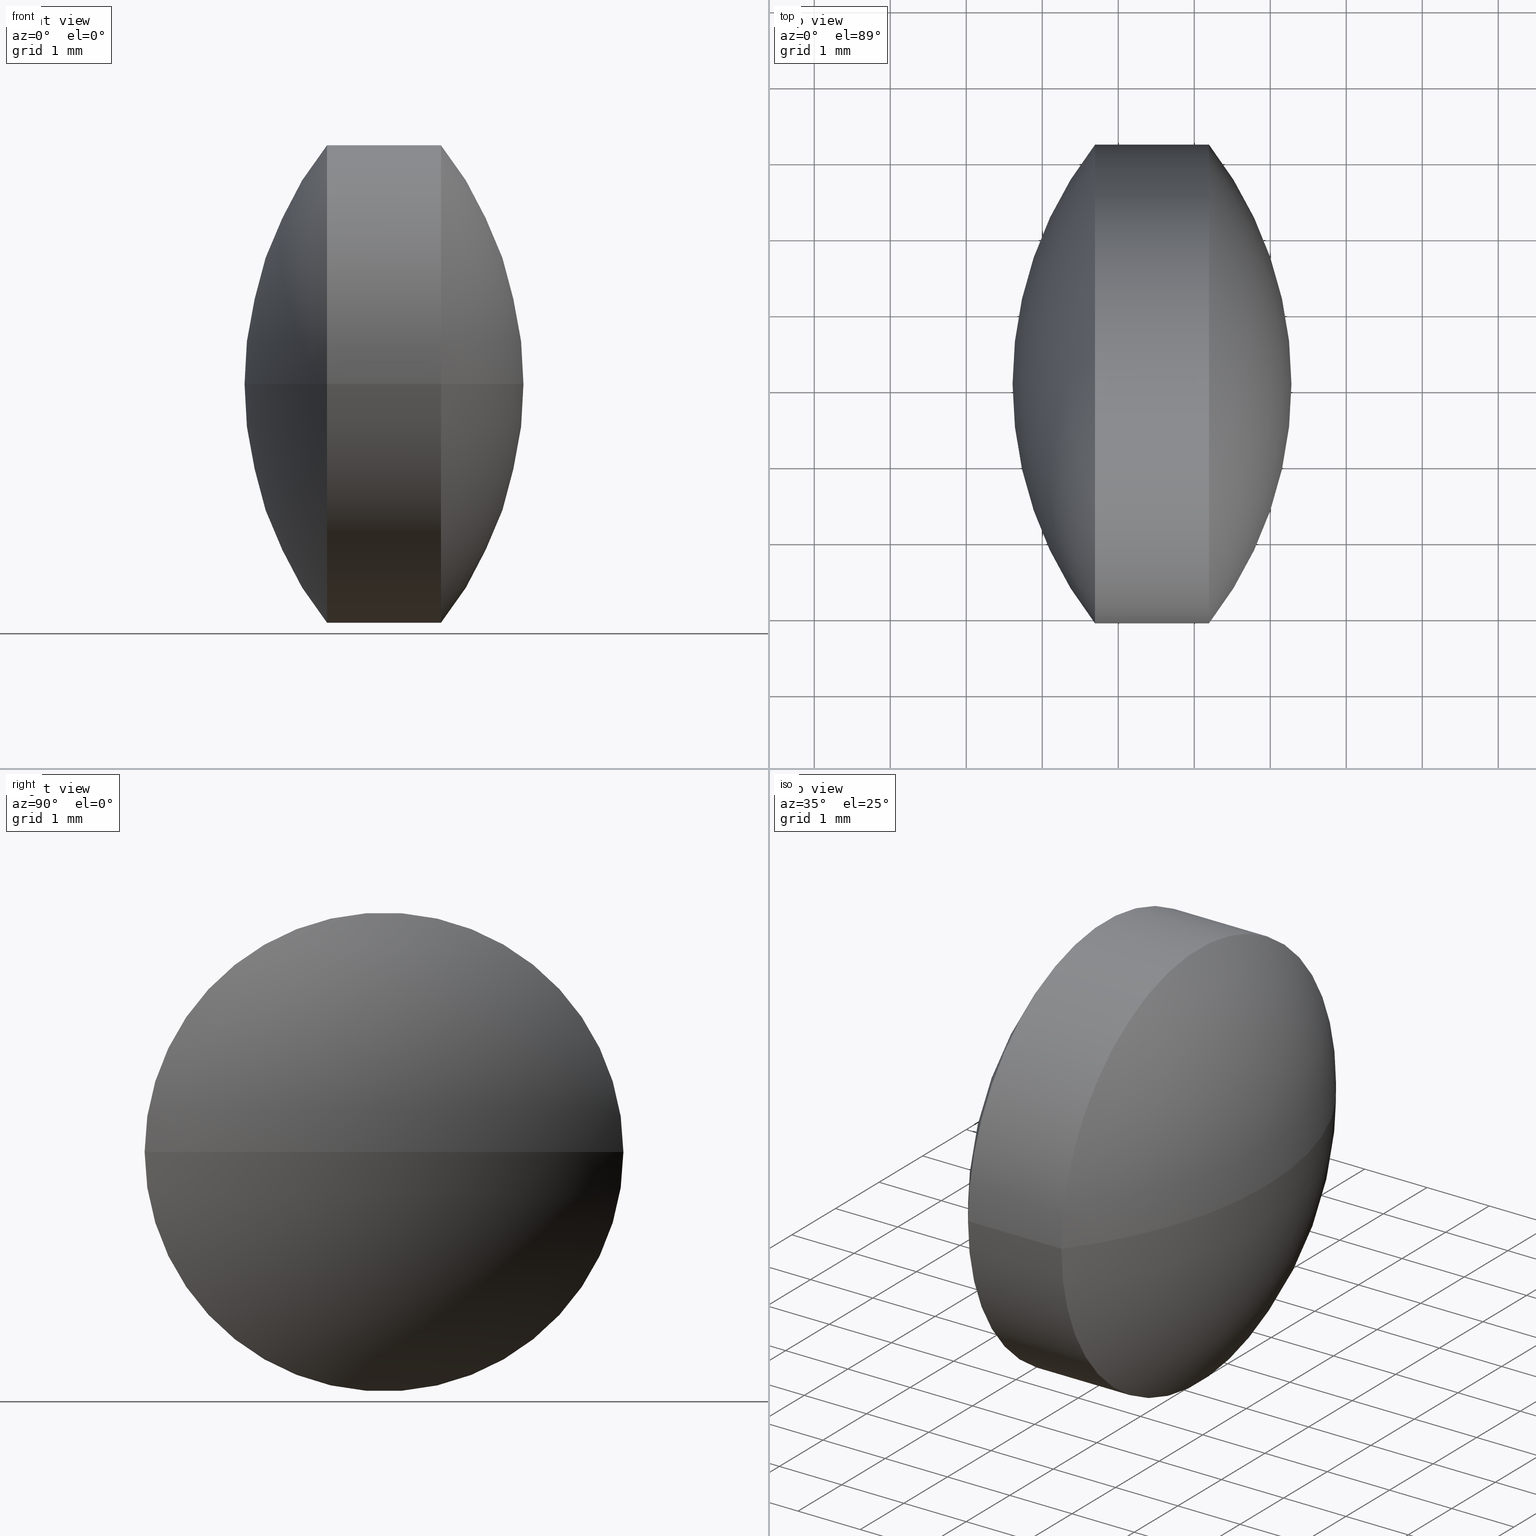
[diagram: canonical four-view strip — front | top / right | iso, engineering-drawing reading convention]
A machine part, canonical four-view strip (front | top / right | iso — engineering-drawing reading convention). The complete STEP part file that produces these views, byte-faithful:
ISO-10303-21;
HEADER;
FILE_DESCRIPTION (( 'STEP AP203' ),
    '1' );
FILE_NAME ('110089.STEP',
    '2019-07-01T08:39:48',
    ( '' ),
    ( '' ),
    'SwSTEP 2.0',
    'SolidWorks 2016',
    '' );
FILE_SCHEMA (( 'CONFIG_CONTROL_DESIGN' ));
ENDSEC;

DATA;
#1 = MECHANICAL_CONTEXT ( 'NONE', #4, 'mechanical' ) ;
#2 = CARTESIAN_POINT ( 'NONE',  ( 18.16424793177497700, 12.05832724590804600, 0.0000000000000000000 ) ) ;
#3 = PERSON_AND_ORGANIZATION ( #164, #63 ) ;
#4 = APPLICATION_CONTEXT ( 'configuration controlled 3d designs of mechanical parts and assemblies' ) ;
#5 = FACE_OUTER_BOUND ( 'NONE', #30, .T. ) ;
#6 = FACE_OUTER_BOUND ( 'NONE', #210, .T. ) ;
#7 = CC_DESIGN_PERSON_AND_ORGANIZATION_ASSIGNMENT ( #207, #44, ( #20 ) ) ;
#8 = APPROVAL_ROLE ( '' ) ;
#9 = APPROVAL_PERSON_ORGANIZATION ( #65, #212, #8 ) ;
#10 = LOCAL_TIME ( 16, 39, 48.00000000000000000, #66 ) ;
#11 = MANIFOLD_SOLID_BREP ( '��ת1', #286 ) ;
#12 = CARTESIAN_POINT ( 'NONE',  ( 20.69435814883362200, 15.20832724590803800, 0.0000000000000000000 ) ) ;
#13 = ADVANCED_BREP_SHAPE_REPRESENTATION ( '110089', ( #11, #273 ), #99 ) ;
#14 = CC_DESIGN_PERSON_AND_ORGANIZATION_ASSIGNMENT ( #293, #67, ( #64 ) ) ;
#15 = SPHERICAL_SURFACE ( 'NONE', #276, 5.115099217058601200 ) ;
#16 = DIRECTION ( 'NONE',  ( -1.000000000000000000, 1.322154552567026900E-015, -0.0000000000000000000 ) ) ;
#17 = LOCAL_TIME ( 16, 39, 48.00000000000000000, #264 ) ;
#18 = FACE_OUTER_BOUND ( 'NONE', #260, .T. ) ;
#19 = ORIENTED_EDGE ( 'NONE', *, *, #263, .F. ) ;
#20 = PRODUCT_DEFINITION_FORMATION_WITH_SPECIFIED_SOURCE ( '�κ�', '', #41, .NOT_KNOWN. ) ;
#21 = DESIGN_CONTEXT ( 'detailed design', #229, 'design' ) ;
#22 = AXIS2_PLACEMENT_3D ( 'NONE', #299, #16, #180 ) ;
#23 = ORIENTED_EDGE ( 'NONE', *, *, #204, .F. ) ;
#24 = APPROVAL_STATUS ( 'not_yet_approved' ) ;
#25 = APPROVAL_ROLE ( '' ) ;
#26 = CARTESIAN_POINT ( 'NONE',  ( 20.69435814883361500, 8.908327245908047600, -3.857637417314156800E-016 ) ) ;
#27 = APPLICATION_PROTOCOL_DEFINITION ( 'international standard', 'config_control_design', 1994, #172 ) ;
#28 = DIRECTION ( 'NONE',  ( 0.0000000000000000000, -1.000000000000000000, -1.224646799147353000E-016 ) ) ;
#29 = ADVANCED_FACE ( 'NONE', ( #6 ), #58, .T. ) ;
#30 = EDGE_LOOP ( 'NONE', ( #266, #202, #33 ) ) ;
#31 = DIRECTION ( 'NONE',  ( -1.101411730778926900E-015, -1.000000000000000000, 0.0000000000000000000 ) ) ;
#32 = APPROVAL_DATE_TIME ( #177, #268 ) ;
#33 = ORIENTED_EDGE ( 'NONE', *, *, #204, .T. ) ;
#34 = CARTESIAN_POINT ( 'NONE',  ( 19.60936314883361900, 12.05832724590804400, 0.0000000000000000000 ) ) ;
#35 = CC_DESIGN_DATE_AND_TIME_ASSIGNMENT ( #72, #252, ( #274 ) ) ;
#36 = COORDINATED_UNIVERSAL_TIME_OFFSET ( 8, 0, .AHEAD. ) ;
#37 = CARTESIAN_POINT ( 'NONE',  ( 18.16424793177497700, 12.05832724590804600, 0.0000000000000000000 ) ) ;
#38 = DIRECTION ( 'NONE',  ( 0.0000000000000000000, 1.000000000000000000, 1.224646799147353000E-016 ) ) ;
#39 = ORIENTED_EDGE ( 'NONE', *, *, #297, .F. ) ;
#40 = UNCERTAINTY_MEASURE_WITH_UNIT (LENGTH_MEASURE( 1.000000000000000100E-005 ), #43, 'distance_accuracy_value', 'NONE');
#41 = PRODUCT ( '110089', '110089', '', ( #123 ) ) ;
#42 = LOCAL_TIME ( 16, 39, 48.00000000000000000, #239 ) ;
#43 =( LENGTH_UNIT ( ) NAMED_UNIT ( * ) SI_UNIT ( .MILLI., .METRE. ) );
#44 = PERSON_AND_ORGANIZATION_ROLE ( 'design_supplier' ) ;
#45 = PERSON_AND_ORGANIZATION_ROLE ( 'design_supplier' ) ;
#46 = PERSON_AND_ORGANIZATION_ROLE ( 'creator' ) ;
#47 = DATE_TIME_ROLE ( 'creation_date' ) ;
#48 = APPROVAL ( #119, 'δָ��' ) ;
#49 = APPROVAL_DATE_TIME ( #113, #160 ) ;
#50 = FACE_OUTER_BOUND ( 'NONE', #142, .T. ) ;
#51 = AXIS2_PLACEMENT_3D ( 'NONE', #2, #192, #28 ) ;
#52 = PERSON_AND_ORGANIZATION ( #164, #63 ) ;
#53 = CC_DESIGN_PERSON_AND_ORGANIZATION_ASSIGNMENT ( #3, #187, ( #115 ) ) ;
#54 = CARTESIAN_POINT ( 'NONE',  ( 22.19435214883362000, 12.05832724590804100, 0.0000000000000000000 ) ) ;
#55 = AXIS2_PLACEMENT_3D ( 'NONE', #54, #238, #156 ) ;
#56 = DIRECTION ( 'NONE',  ( 0.0000000000000000000, 0.0000000000000000000, 1.000000000000000000 ) ) ;
#57 = COORDINATED_UNIVERSAL_TIME_OFFSET ( 8, 0, .AHEAD. ) ;
#58 = SPHERICAL_SURFACE ( 'NONE', #271, 5.115099217058636700 ) ;
#59 = CARTESIAN_POINT ( 'NONE',  ( 18.16424793177497700, 12.05832724590804600, 0.0000000000000000000 ) ) ;
#60 = DIRECTION ( 'NONE',  ( 1.000000000000000000, 0.0000000000000000000, 0.0000000000000000000 ) ) ;
#61 = LOCAL_TIME ( 16, 39, 48.00000000000000000, #57 ) ;
#62 = DIRECTION ( 'NONE',  ( -1.000000000000000000, 1.322154552567026900E-015, -0.0000000000000000000 ) ) ;
#63 = ORGANIZATION ( 'δָ��', 'δָ��', '' ) ;
#64 = PRODUCT_DEFINITION_FORMATION_WITH_SPECIFIED_SOURCE ( '�κ�', '', #144, .NOT_KNOWN. ) ;
#65 = PERSON_AND_ORGANIZATION ( #164, #63 ) ;
#66 = COORDINATED_UNIVERSAL_TIME_OFFSET ( 8, 0, .AHEAD. ) ;
#67 = PERSON_AND_ORGANIZATION_ROLE ( 'creator' ) ;
#68 = CC_DESIGN_APPROVAL ( #183, ( #274 ) ) ;
#69 = ADVANCED_FACE ( 'NONE', ( #50 ), #106, .T. ) ;
#70 = DIRECTION ( 'NONE',  ( -1.000000000000000000, 0.0000000000000000000, 0.0000000000000000000 ) ) ;
#71 = AXIS2_PLACEMENT_3D ( 'NONE', #59, #56, #81 ) ;
#72 = DATE_AND_TIME ( #139, #17 ) ;
#73 = APPROVAL_ROLE ( '' ) ;
#74 = VERTEX_POINT ( 'NONE', #34 ) ;
#75 = PERSON_AND_ORGANIZATION_ROLE ( 'creator' ) ;
#76 = PERSON_AND_ORGANIZATION ( #164, #63 ) ;
#77 = CC_DESIGN_PERSON_AND_ORGANIZATION_ASSIGNMENT ( #141, #75, ( #20 ) ) ;
#78 = DATE_AND_TIME ( #188, #173 ) ;
#79 = LOCAL_TIME ( 16, 39, 48.00000000000000000, #236 ) ;
#80 = DIRECTION ( 'NONE',  ( -1.356551184924490700E-015, -1.000000000000000000, 0.0000000000000000000 ) ) ;
#81 = DIRECTION ( 'NONE',  ( -1.356551184924490700E-015, -1.000000000000000000, 0.0000000000000000000 ) ) ;
#82 = CARTESIAN_POINT ( 'NONE',  ( 18.16424793177497300, 8.908327245908051100, 0.0000000000000000000 ) ) ;
#83 = CC_DESIGN_SECURITY_CLASSIFICATION ( #305, ( #64 ) ) ;
#84 = PRODUCT_DEFINITION_SHAPE ( 'NONE', 'NONE',  #115 ) ;
#85 = CC_DESIGN_APPROVAL ( #268, ( #20 ) ) ;
#86 = CIRCLE ( 'NONE', #186, 5.115099217058636700 ) ;
#87 = VERTEX_POINT ( 'NONE', #267 ) ;
#88 = EDGE_CURVE ( 'NONE', #282, #194, #295, .T. ) ;
#89 = CC_DESIGN_APPROVAL ( #160, ( #253 ) ) ;
#90 =( NAMED_UNIT ( * ) PLANE_ANGLE_UNIT ( ) SI_UNIT ( $, .RADIAN. ) );
#91 = APPROVAL_DATE_TIME ( #222, #212 ) ;
#92 = APPLICATION_PROTOCOL_DEFINITION ( 'international standard', 'config_control_design', 1994, #229 ) ;
#93 = COORDINATED_UNIVERSAL_TIME_OFFSET ( 8, 0, .AHEAD. ) ;
#94 = VERTEX_POINT ( 'NONE', #159 ) ;
#95 = CARTESIAN_POINT ( 'NONE',  ( 0.0000000000000000000, 0.0000000000000000000, 0.0000000000000000000 ) ) ;
#96 = CARTESIAN_POINT ( 'NONE',  ( 22.19435214883361600, 8.908327245908040500, 0.0000000000000000000 ) ) ;
#97 = APPROVAL_PERSON_ORGANIZATION ( #162, #277, #205 ) ;
#98 = ORIENTED_EDGE ( 'NONE', *, *, #158, .F. ) ;
#99 =( GEOMETRIC_REPRESENTATION_CONTEXT ( 3 ) GLOBAL_UNCERTAINTY_ASSIGNED_CONTEXT ( ( #40 ) ) GLOBAL_UNIT_ASSIGNED_CONTEXT ( ( #43, #90, #170 ) ) REPRESENTATION_CONTEXT ( 'NONE', 'WORKASPACE' ) );
#100 = PERSON_AND_ORGANIZATION ( #164, #63 ) ;
#101 = ORIENTED_EDGE ( 'NONE', *, *, #140, .F. ) ;
#102 = DIRECTION ( 'NONE',  ( 0.0000000000000000000, 0.0000000000000000000, -1.000000000000000000 ) ) ;
#103 = DIRECTION ( 'NONE',  ( 0.0000000000000000000, 0.0000000000000000000, 1.000000000000000000 ) ) ;
#104 = DATE_AND_TIME ( #191, #176 ) ;
#105 = CALENDAR_DATE ( 2019, 1, 7 ) ;
#106 = CYLINDRICAL_SURFACE ( 'NONE', #287, 3.149999999999995000 ) ;
#107 = DIRECTION ( 'NONE',  ( -1.000000000000000000, 1.322154552567026900E-015, -0.0000000000000000000 ) ) ;
#108 = PRODUCT_RELATED_PRODUCT_CATEGORY ( 'detail', '', ( #41 ) ) ;
#109 = CALENDAR_DATE ( 2019, 1, 7 ) ;
#110 = ORIENTED_EDGE ( 'NONE', *, *, #88, .F. ) ;
#111 = CALENDAR_DATE ( 2019, 1, 7 ) ;
#112 = APPROVAL_DATE_TIME ( #104, #48 ) ;
#113 = DATE_AND_TIME ( #230, #61 ) ;
#114 = ORIENTED_EDGE ( 'NONE', *, *, #247, .T. ) ;
#115 = PRODUCT_DEFINITION ( 'δ֪', '', #64, #21 ) ;
#116 = PERSON_AND_ORGANIZATION ( #164, #63 ) ;
#117 = APPLICATION_PROTOCOL_DEFINITION ( 'international standard', 'config_control_design', 1994, #4 ) ;
#118 = CC_DESIGN_PERSON_AND_ORGANIZATION_ASSIGNMENT ( #163, #121, ( #144 ) ) ;
#119 = APPROVAL_STATUS ( 'not_yet_approved' ) ;
#120 = EDGE_CURVE ( 'NONE', #87, #194, #214, .T. ) ;
#121 = PERSON_AND_ORGANIZATION_ROLE ( 'design_owner' ) ;
#122 = APPROVAL_PERSON_ORGANIZATION ( #303, #160, #25 ) ;
#123 = MECHANICAL_CONTEXT ( 'NONE', #172, 'mechanical' ) ;
#124 = PRODUCT_RELATED_PRODUCT_CATEGORY ( 'detail', '', ( #144 ) ) ;
#125 = ADVANCED_FACE ( 'NONE', ( #296 ), #240, .T. ) ;
#126 = CYLINDRICAL_SURFACE ( 'NONE', #257, 3.149999999999995000 ) ;
#127 = DATE_TIME_ROLE ( 'classification_date' ) ;
#128 = DIRECTION ( 'NONE',  ( -1.000000000000000000, 1.322154552567026900E-015, -0.0000000000000000000 ) ) ;
#129 = CARTESIAN_POINT ( 'NONE',  ( 24.72446236589222200, 12.05832724590803700, 0.0000000000000000000 ) ) ;
#130 = VECTOR ( 'NONE', #243, 1000.000000000000000 ) ;
#131 = ORIENTED_EDGE ( 'NONE', *, *, #242, .F. ) ;
#132 = CARTESIAN_POINT ( 'NONE',  ( 24.72446236589222200, 12.05832724590803700, 0.0000000000000000000 ) ) ;
#133 = AXIS2_PLACEMENT_3D ( 'NONE', #95, #258, #225 ) ;
#134 = DIRECTION ( 'NONE',  ( -1.101411730778927500E-015, -1.000000000000000000, 0.0000000000000000000 ) ) ;
#135 = DATE_AND_TIME ( #278, #302 ) ;
#136 = APPROVAL_PERSON_ORGANIZATION ( #52, #268, #73 ) ;
#137 = DIRECTION ( 'NONE',  ( 1.356551184924500000E-015, 1.000000000000000000, 0.0000000000000000000 ) ) ;
#138 = CC_DESIGN_PERSON_AND_ORGANIZATION_ASSIGNMENT ( #272, #175, ( #305 ) ) ;
#139 = CALENDAR_DATE ( 2019, 1, 7 ) ;
#140 = EDGE_CURVE ( 'NONE', #289, #87, #209, .T. ) ;
#141 = PERSON_AND_ORGANIZATION ( #164, #63 ) ;
#142 = EDGE_LOOP ( 'NONE', ( #304, #151, #110, #98 ) ) ;
#143 = APPROVAL_STATUS ( 'not_yet_approved' ) ;
#144 = PRODUCT ( '110089', '110089', '', ( #1 ) ) ;
#145 = DIRECTION ( 'NONE',  ( -1.101411730778927500E-015, -1.000000000000000000, 0.0000000000000000000 ) ) ;
#146 = ORIENTED_EDGE ( 'NONE', *, *, #158, .T. ) ;
#147 = CARTESIAN_POINT ( 'NONE',  ( 0.0000000000000000000, 0.0000000000000000000, 0.0000000000000000000 ) ) ;
#148 = ADVANCED_FACE ( 'NONE', ( #18 ), #154, .T. ) ;
#149 = CARTESIAN_POINT ( 'NONE',  ( 20.69435814883361900, 12.05832724590804300, 0.0000000000000000000 ) ) ;
#150 = CC_DESIGN_PERSON_AND_ORGANIZATION_ASSIGNMENT ( #116, #45, ( #64 ) ) ;
#151 = ORIENTED_EDGE ( 'NONE', *, *, #120, .T. ) ;
#152 = CC_DESIGN_APPROVAL ( #212, ( #305 ) ) ;
#153 = PERSON_AND_ORGANIZATION ( #164, #63 ) ;
#154 = SPHERICAL_SURFACE ( 'NONE', #174, 5.115099217058601200 ) ;
#155 = ORIENTED_EDGE ( 'NONE', *, *, #251, .F. ) ;
#156 = DIRECTION ( 'NONE',  ( -1.101411730778926900E-015, -1.000000000000000000, 0.0000000000000000000 ) ) ;
#157 = CARTESIAN_POINT ( 'NONE',  ( 18.16424793177497700, 12.05832724590804600, 0.0000000000000000000 ) ) ;
#158 = EDGE_CURVE ( 'NONE', #289, #282, #234, .T. ) ;
#159 = CARTESIAN_POINT ( 'NONE',  ( 23.27934714883361500, 12.05832724590803900, 0.0000000000000000000 ) ) ;
#160 = APPROVAL ( #24, 'δָ��' ) ;
#161 = DIRECTION ( 'NONE',  ( 1.619172340779310500E-031, 1.224646799147353200E-016, -1.000000000000000000 ) ) ;
#162 = PERSON_AND_ORGANIZATION ( #164, #63 ) ;
#163 = PERSON_AND_ORGANIZATION ( #164, #63 ) ;
#164 = PERSON ( 'δָ��', 'δָ��', 'δָ��', ('δָ��'), ('δָ��'), ('δָ��') ) ;
#165 = DATE_AND_TIME ( #105, #193 ) ;
#166 = CC_DESIGN_DATE_AND_TIME_ASSIGNMENT ( #135, #127, ( #305 ) ) ;
#167 = APPROVAL_ROLE ( '' ) ;
#168 = DESIGN_CONTEXT ( 'detailed design', #283, 'design' ) ;
#169 = APPROVAL_STATUS ( 'not_yet_approved' ) ;
#170 =( NAMED_UNIT ( * ) SI_UNIT ( $, .STERADIAN. ) SOLID_ANGLE_UNIT ( ) );
#171 = AXIS2_PLACEMENT_3D ( 'NONE', #244, #161, #38 ) ;
#172 = APPLICATION_CONTEXT ( 'configuration controlled 3d designs of mechanical parts and assemblies' ) ;
#173 = LOCAL_TIME ( 16, 39, 48.00000000000000000, #93 ) ;
#174 = AXIS2_PLACEMENT_3D ( 'NONE', #129, #292, #270 ) ;
#175 = PERSON_AND_ORGANIZATION_ROLE ( 'classification_officer' ) ;
#176 = LOCAL_TIME ( 16, 39, 48.00000000000000000, #224 ) ;
#177 = DATE_AND_TIME ( #301, #10 ) ;
#178 = ORIENTED_EDGE ( 'NONE', *, *, #251, .T. ) ;
#179 = CARTESIAN_POINT ( 'NONE',  ( 20.69435814883361900, 12.05832724590804300, 0.0000000000000000000 ) ) ;
#180 = DIRECTION ( 'NONE',  ( -1.101411730778926900E-015, -1.000000000000000000, 0.0000000000000000000 ) ) ;
#181 = CARTESIAN_POINT ( 'NONE',  ( 18.16424793177497700, 12.05832724590804600, 0.0000000000000000000 ) ) ;
#182 = SHAPE_DEFINITION_REPRESENTATION ( #84, #13 ) ;
#183 = APPROVAL ( #169, 'δָ��' ) ;
#184 = COORDINATED_UNIVERSAL_TIME_OFFSET ( 8, 0, .AHEAD. ) ;
#185 = CIRCLE ( 'NONE', #200, 3.149999999999993200 ) ;
#186 = AXIS2_PLACEMENT_3D ( 'NONE', #37, #228, #70 ) ;
#187 = PERSON_AND_ORGANIZATION_ROLE ( 'creator' ) ;
#188 = CALENDAR_DATE ( 2019, 1, 7 ) ;
#189 = DATE_TIME_ROLE ( 'creation_date' ) ;
#190 = APPLICATION_PROTOCOL_DEFINITION ( 'international standard', 'config_control_design', 1994, #283 ) ;
#191 = CALENDAR_DATE ( 2019, 1, 7 ) ;
#192 = DIRECTION ( 'NONE',  ( -1.619172340779310500E-031, -1.224646799147353200E-016, 1.000000000000000000 ) ) ;
#193 = LOCAL_TIME ( 16, 39, 48.00000000000000000, #201 ) ;
#194 = VERTEX_POINT ( 'NONE', #12 ) ;
#195 = DATE_AND_TIME ( #248, #42 ) ;
#196 = CC_DESIGN_DATE_AND_TIME_ASSIGNMENT ( #195, #189, ( #115 ) ) ;
#197 = CARTESIAN_POINT ( 'NONE',  ( 18.16424793177498000, 15.20832724590804100, 3.857637417314155300E-016 ) ) ;
#198 = CIRCLE ( 'NONE', #171, 5.115099217058602000 ) ;
#199 = ORIENTED_EDGE ( 'NONE', *, *, #242, .T. ) ;
#200 = AXIS2_PLACEMENT_3D ( 'NONE', #149, #208, #145 ) ;
#201 = COORDINATED_UNIVERSAL_TIME_OFFSET ( 8, 0, .AHEAD. ) ;
#202 = ORIENTED_EDGE ( 'NONE', *, *, #88, .T. ) ;
#203 = PERSON_AND_ORGANIZATION ( #164, #63 ) ;
#204 = EDGE_CURVE ( 'NONE', #194, #74, #219, .T. ) ;
#205 = APPROVAL_ROLE ( '' ) ;
#206 = DATE_AND_TIME ( #111, #275 ) ;
#207 = PERSON_AND_ORGANIZATION ( #164, #63 ) ;
#208 = DIRECTION ( 'NONE',  ( -1.000000000000000000, 1.322154552567026900E-015, -0.0000000000000000000 ) ) ;
#209 = CIRCLE ( 'NONE', #55, 3.149999999999995000 ) ;
#210 = EDGE_LOOP ( 'NONE', ( #155, #241, #101 ) ) ;
#211 = PERSON_AND_ORGANIZATION_ROLE ( 'classification_officer' ) ;
#212 = APPROVAL ( #233, 'δָ��' ) ;
#213 = APPROVAL_DATE_TIME ( #165, #183 ) ;
#214 = LINE ( 'NONE', #197, #130 ) ;
#215 = SECURITY_CLASSIFICATION_LEVEL ( 'unclassified' ) ;
#216 = ORIENTED_EDGE ( 'NONE', *, *, #263, .T. ) ;
#217 = CARTESIAN_POINT ( 'NONE',  ( 24.72446236589222200, 12.05832724590803700, 0.0000000000000000000 ) ) ;
#218 = AXIS2_PLACEMENT_3D ( 'NONE', #179, #291, #134 ) ;
#219 = CIRCLE ( 'NONE', #221, 5.115099217058602000 ) ;
#220 = PERSON_AND_ORGANIZATION ( #164, #63 ) ;
#221 = AXIS2_PLACEMENT_3D ( 'NONE', #132, #103, #60 ) ;
#222 = DATE_AND_TIME ( #109, #79 ) ;
#223 = CC_DESIGN_DATE_AND_TIME_ASSIGNMENT ( #78, #47, ( #253 ) ) ;
#224 = COORDINATED_UNIVERSAL_TIME_OFFSET ( 8, 0, .AHEAD. ) ;
#225 = DIRECTION ( 'NONE',  ( 1.000000000000000000, 0.0000000000000000000, 0.0000000000000000000 ) ) ;
#226 = DIRECTION ( 'NONE',  ( -1.101411730778926900E-015, -1.000000000000000000, 0.0000000000000000000 ) ) ;
#227 = ADVANCED_FACE ( 'NONE', ( #5 ), #15, .T. ) ;
#228 = DIRECTION ( 'NONE',  ( 0.0000000000000000000, -0.0000000000000000000, -1.000000000000000000 ) ) ;
#229 = APPLICATION_CONTEXT ( 'configuration controlled 3d designs of mechanical parts and assemblies' ) ;
#230 = CALENDAR_DATE ( 2019, 1, 7 ) ;
#231 = EDGE_LOOP ( 'NONE', ( #39, #178, #131 ) ) ;
#232 = CC_DESIGN_PERSON_AND_ORGANIZATION_ASSIGNMENT ( #100, #254, ( #41 ) ) ;
#233 = APPROVAL_STATUS ( 'not_yet_approved' ) ;
#234 = LINE ( 'NONE', #82, #245 ) ;
#235 = CARTESIAN_POINT ( 'NONE',  ( 18.16424793177497700, 12.05832724590804600, 0.0000000000000000000 ) ) ;
#236 = COORDINATED_UNIVERSAL_TIME_OFFSET ( 8, 0, .AHEAD. ) ;
#237 = APPROVAL_DATE_TIME ( #206, #277 ) ;
#238 = DIRECTION ( 'NONE',  ( -1.000000000000000000, 1.322154552567026900E-015, -0.0000000000000000000 ) ) ;
#239 = COORDINATED_UNIVERSAL_TIME_OFFSET ( 8, 0, .AHEAD. ) ;
#240 = SPHERICAL_SURFACE ( 'NONE', #71, 5.115099217058636700 ) ;
#241 = ORIENTED_EDGE ( 'NONE', *, *, #297, .T. ) ;
#242 = EDGE_CURVE ( 'NONE', #87, #289, #265, .T. ) ;
#243 = DIRECTION ( 'NONE',  ( -1.000000000000000000, 1.322154552567026900E-015, -0.0000000000000000000 ) ) ;
#244 = CARTESIAN_POINT ( 'NONE',  ( 24.72446236589222200, 12.05832724590803700, 0.0000000000000000000 ) ) ;
#245 = VECTOR ( 'NONE', #107, 1000.000000000000000 ) ;
#246 = CC_DESIGN_PERSON_AND_ORGANIZATION_ASSIGNMENT ( #153, #211, ( #274 ) ) ;
#247 = EDGE_CURVE ( 'NONE', #282, #74, #198, .T. ) ;
#248 = CALENDAR_DATE ( 2019, 1, 7 ) ;
#249 = APPROVAL_PERSON_ORGANIZATION ( #76, #48, #167 ) ;
#250 = PRODUCT_DEFINITION_SHAPE ( 'NONE', 'NONE',  #253 ) ;
#251 = EDGE_CURVE ( 'NONE', #94, #289, #86, .T. ) ;
#252 = DATE_TIME_ROLE ( 'classification_date' ) ;
#253 = PRODUCT_DEFINITION ( 'δ֪', '', #20, #168 ) ;
#254 = PERSON_AND_ORGANIZATION_ROLE ( 'design_owner' ) ;
#255 = EDGE_LOOP ( 'NONE', ( #269, #199, #146, #19 ) ) ;
#256 = APPROVAL_ROLE ( '' ) ;
#257 = AXIS2_PLACEMENT_3D ( 'NONE', #181, #62, #226 ) ;
#258 = DIRECTION ( 'NONE',  ( 0.0000000000000000000, 0.0000000000000000000, 1.000000000000000000 ) ) ;
#259 = APPROVAL_PERSON_ORGANIZATION ( #203, #183, #256 ) ;
#260 = EDGE_LOOP ( 'NONE', ( #216, #114, #23 ) ) ;
#261 = CC_DESIGN_APPROVAL ( #48, ( #115 ) ) ;
#262 = ADVANCED_FACE ( 'NONE', ( #281 ), #126, .T. ) ;
#263 = EDGE_CURVE ( 'NONE', #194, #282, #185, .T. ) ;
#264 = COORDINATED_UNIVERSAL_TIME_OFFSET ( 8, 0, .AHEAD. ) ;
#265 = CIRCLE ( 'NONE', #22, 3.149999999999995000 ) ;
#266 = ORIENTED_EDGE ( 'NONE', *, *, #247, .F. ) ;
#267 = CARTESIAN_POINT ( 'NONE',  ( 22.19435214883362300, 15.20832724590804100, 3.857637417314162200E-016 ) ) ;
#268 = APPROVAL ( #285, 'δָ��' ) ;
#269 = ORIENTED_EDGE ( 'NONE', *, *, #120, .F. ) ;
#270 = DIRECTION ( 'NONE',  ( 1.356551184924500000E-015, 1.000000000000000000, 0.0000000000000000000 ) ) ;
#271 = AXIS2_PLACEMENT_3D ( 'NONE', #157, #298, #80 ) ;
#272 = PERSON_AND_ORGANIZATION ( #164, #63 ) ;
#273 = AXIS2_PLACEMENT_3D ( 'NONE', #147, #279, #280 ) ;
#274 = SECURITY_CLASSIFICATION ( '', '', #284 ) ;
#275 = LOCAL_TIME ( 16, 39, 48.00000000000000000, #36 ) ;
#276 = AXIS2_PLACEMENT_3D ( 'NONE', #217, #102, #137 ) ;
#277 = APPROVAL ( #143, 'δָ��' ) ;
#278 = CALENDAR_DATE ( 2019, 1, 7 ) ;
#279 = DIRECTION ( 'NONE',  ( 0.0000000000000000000, 0.0000000000000000000, 1.000000000000000000 ) ) ;
#280 = DIRECTION ( 'NONE',  ( 1.000000000000000000, 0.0000000000000000000, 0.0000000000000000000 ) ) ;
#281 = FACE_OUTER_BOUND ( 'NONE', #255, .T. ) ;
#282 = VERTEX_POINT ( 'NONE', #26 ) ;
#283 = APPLICATION_CONTEXT ( 'configuration controlled 3d designs of mechanical parts and assemblies' ) ;
#284 = SECURITY_CLASSIFICATION_LEVEL ( 'unclassified' ) ;
#285 = APPROVAL_STATUS ( 'not_yet_approved' ) ;
#286 = CLOSED_SHELL ( 'NONE', ( #69, #29, #148, #227, #125, #262 ) ) ;
#287 = AXIS2_PLACEMENT_3D ( 'NONE', #235, #128, #31 ) ;
#288 = CIRCLE ( 'NONE', #51, 5.115099217058636700 ) ;
#289 = VERTEX_POINT ( 'NONE', #96 ) ;
#290 = CC_DESIGN_PERSON_AND_ORGANIZATION_ASSIGNMENT ( #220, #46, ( #253 ) ) ;
#291 = DIRECTION ( 'NONE',  ( -1.000000000000000000, 1.322154552567026900E-015, -0.0000000000000000000 ) ) ;
#292 = DIRECTION ( 'NONE',  ( 0.0000000000000000000, 0.0000000000000000000, -1.000000000000000000 ) ) ;
#293 = PERSON_AND_ORGANIZATION ( #164, #63 ) ;
#294 = CC_DESIGN_SECURITY_CLASSIFICATION ( #274, ( #20 ) ) ;
#295 = CIRCLE ( 'NONE', #218, 3.149999999999993200 ) ;
#296 = FACE_OUTER_BOUND ( 'NONE', #231, .T. ) ;
#297 = EDGE_CURVE ( 'NONE', #94, #87, #288, .T. ) ;
#298 = DIRECTION ( 'NONE',  ( 0.0000000000000000000, 0.0000000000000000000, 1.000000000000000000 ) ) ;
#299 = CARTESIAN_POINT ( 'NONE',  ( 22.19435214883362000, 12.05832724590804100, 0.0000000000000000000 ) ) ;
#300 = CC_DESIGN_APPROVAL ( #277, ( #64 ) ) ;
#301 = CALENDAR_DATE ( 2019, 1, 7 ) ;
#302 = LOCAL_TIME ( 16, 39, 48.00000000000000000, #184 ) ;
#303 = PERSON_AND_ORGANIZATION ( #164, #63 ) ;
#304 = ORIENTED_EDGE ( 'NONE', *, *, #140, .T. ) ;
#305 = SECURITY_CLASSIFICATION ( '', '', #215 ) ;
ENDSEC;
END-ISO-10303-21;
